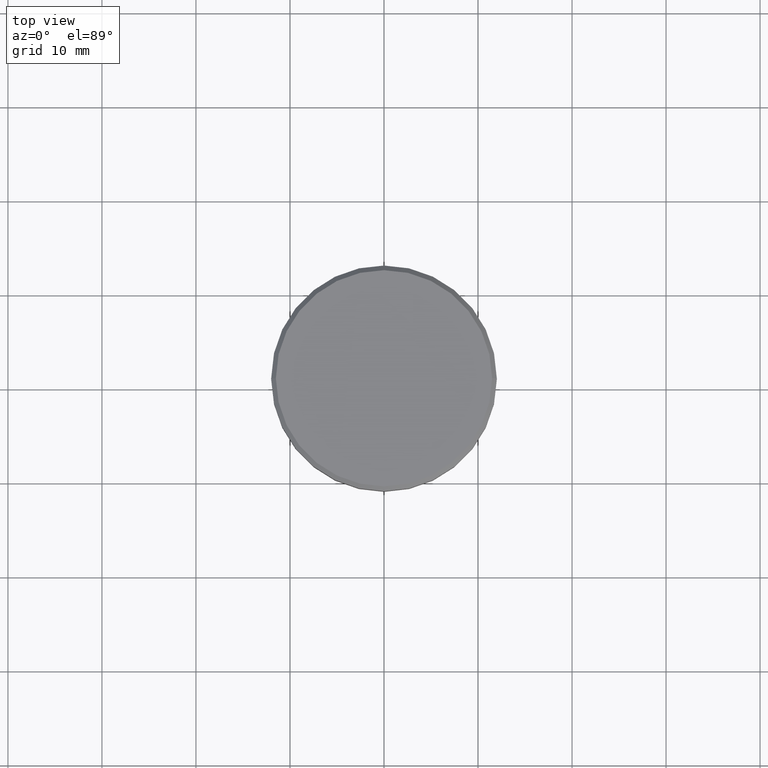
[diagram: clean part render]
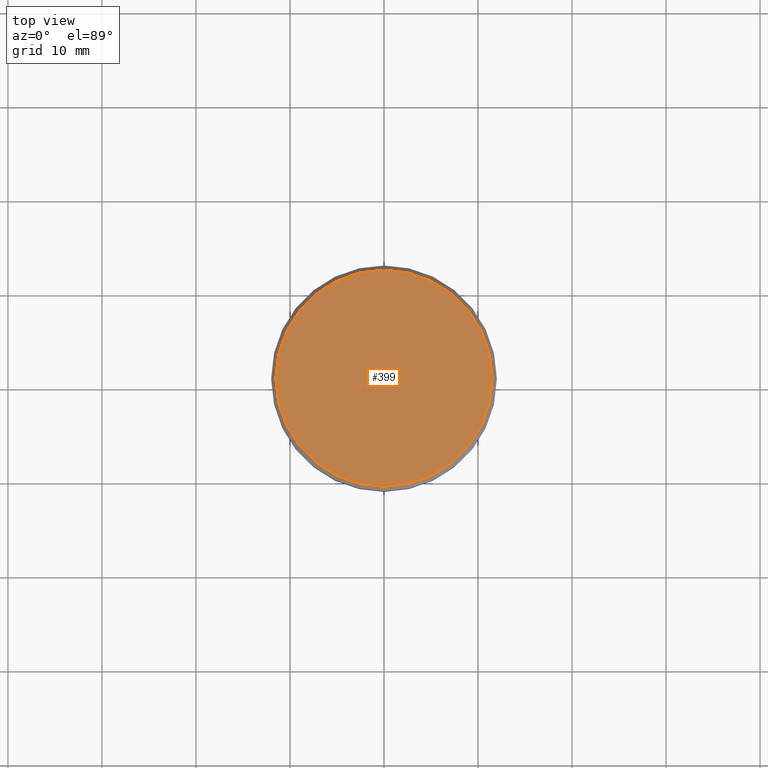
[diagram: same view with one face highlighted and labeled with its STEP entity id]
A machine part, top view. The second image highlights one B-rep face of the part: STEP entity #399.
In plain terms, the highlighted planar face has unit normal (0, -0, 1).
Its self-contained STEP definition (entity closure, byte-faithful):
#117 = DIRECTION ( 'NONE',  ( 0.000000000000000000, -0.000000000000000000, 1.000000000000000000 ) ) ;
#197 = CARTESIAN_POINT ( 'NONE',  ( 0.000000000000000000, 0.000000000000000000, 0.000000000000000000 ) ) ;
#268 = CARTESIAN_POINT ( 'NONE',  ( 11.50000000000000888, 1.438959988998140752E-15, 0.000000000000000000 ) ) ;
#283 = DIRECTION ( 'NONE',  ( 1.000000000000000000, 0.000000000000000000, 0.000000000000000000 ) ) ;
#352 = CARTESIAN_POINT ( 'NONE',  ( 0.000000000000000000, 0.000000000000000000, 0.000000000000000000 ) ) ;
#354 = AXIS2_PLACEMENT_3D ( 'NONE', #352, #548, #283 ) ;
#399 = ADVANCED_FACE ( 'NONE', ( #848 ), #943, .T. ) ;
#548 = DIRECTION ( 'NONE',  ( -0.000000000000000000, -0.000000000000000000, 1.000000000000000000 ) ) ;
#550 = CIRCLE ( 'NONE', #354, 11.50000000000000888 ) ;
#697 = AXIS2_PLACEMENT_3D ( 'NONE', #760, #117, #1117 ) ;
#748 = AXIS2_PLACEMENT_3D ( 'NONE', #197, #922, #1105 ) ;
#760 = CARTESIAN_POINT ( 'NONE',  ( 0.000000000000000000, 0.000000000000000000, 0.000000000000000000 ) ) ;
#809 = VERTEX_POINT ( 'NONE', #1093 ) ;
#814 = VERTEX_POINT ( 'NONE', #268 ) ;
#825 = EDGE_CURVE ( 'NONE', #809, #814, #1125, .T. ) ;
#848 = FACE_OUTER_BOUND ( 'NONE', #918, .T. ) ;
#851 = ORIENTED_EDGE ( 'NONE', *, *, #825, .T. ) ;
#918 = EDGE_LOOP ( 'NONE', ( #851, #1070 ) ) ;
#922 = DIRECTION ( 'NONE',  ( -0.000000000000000000, -0.000000000000000000, 1.000000000000000000 ) ) ;
#943 = PLANE ( 'NONE',  #697 ) ;
#1070 = ORIENTED_EDGE ( 'NONE', *, *, #1164, .T. ) ;
#1093 = CARTESIAN_POINT ( 'NONE',  ( -11.50000000000000888, 0.000000000000000000, 0.000000000000000000 ) ) ;
#1105 = DIRECTION ( 'NONE',  ( 1.000000000000000000, 0.000000000000000000, 0.000000000000000000 ) ) ;
#1117 = DIRECTION ( 'NONE',  ( 1.000000000000000000, 0.000000000000000000, 0.000000000000000000 ) ) ;
#1125 = CIRCLE ( 'NONE', #748, 11.50000000000000888 ) ;
#1164 = EDGE_CURVE ( 'NONE', #814, #809, #550, .T. ) ;